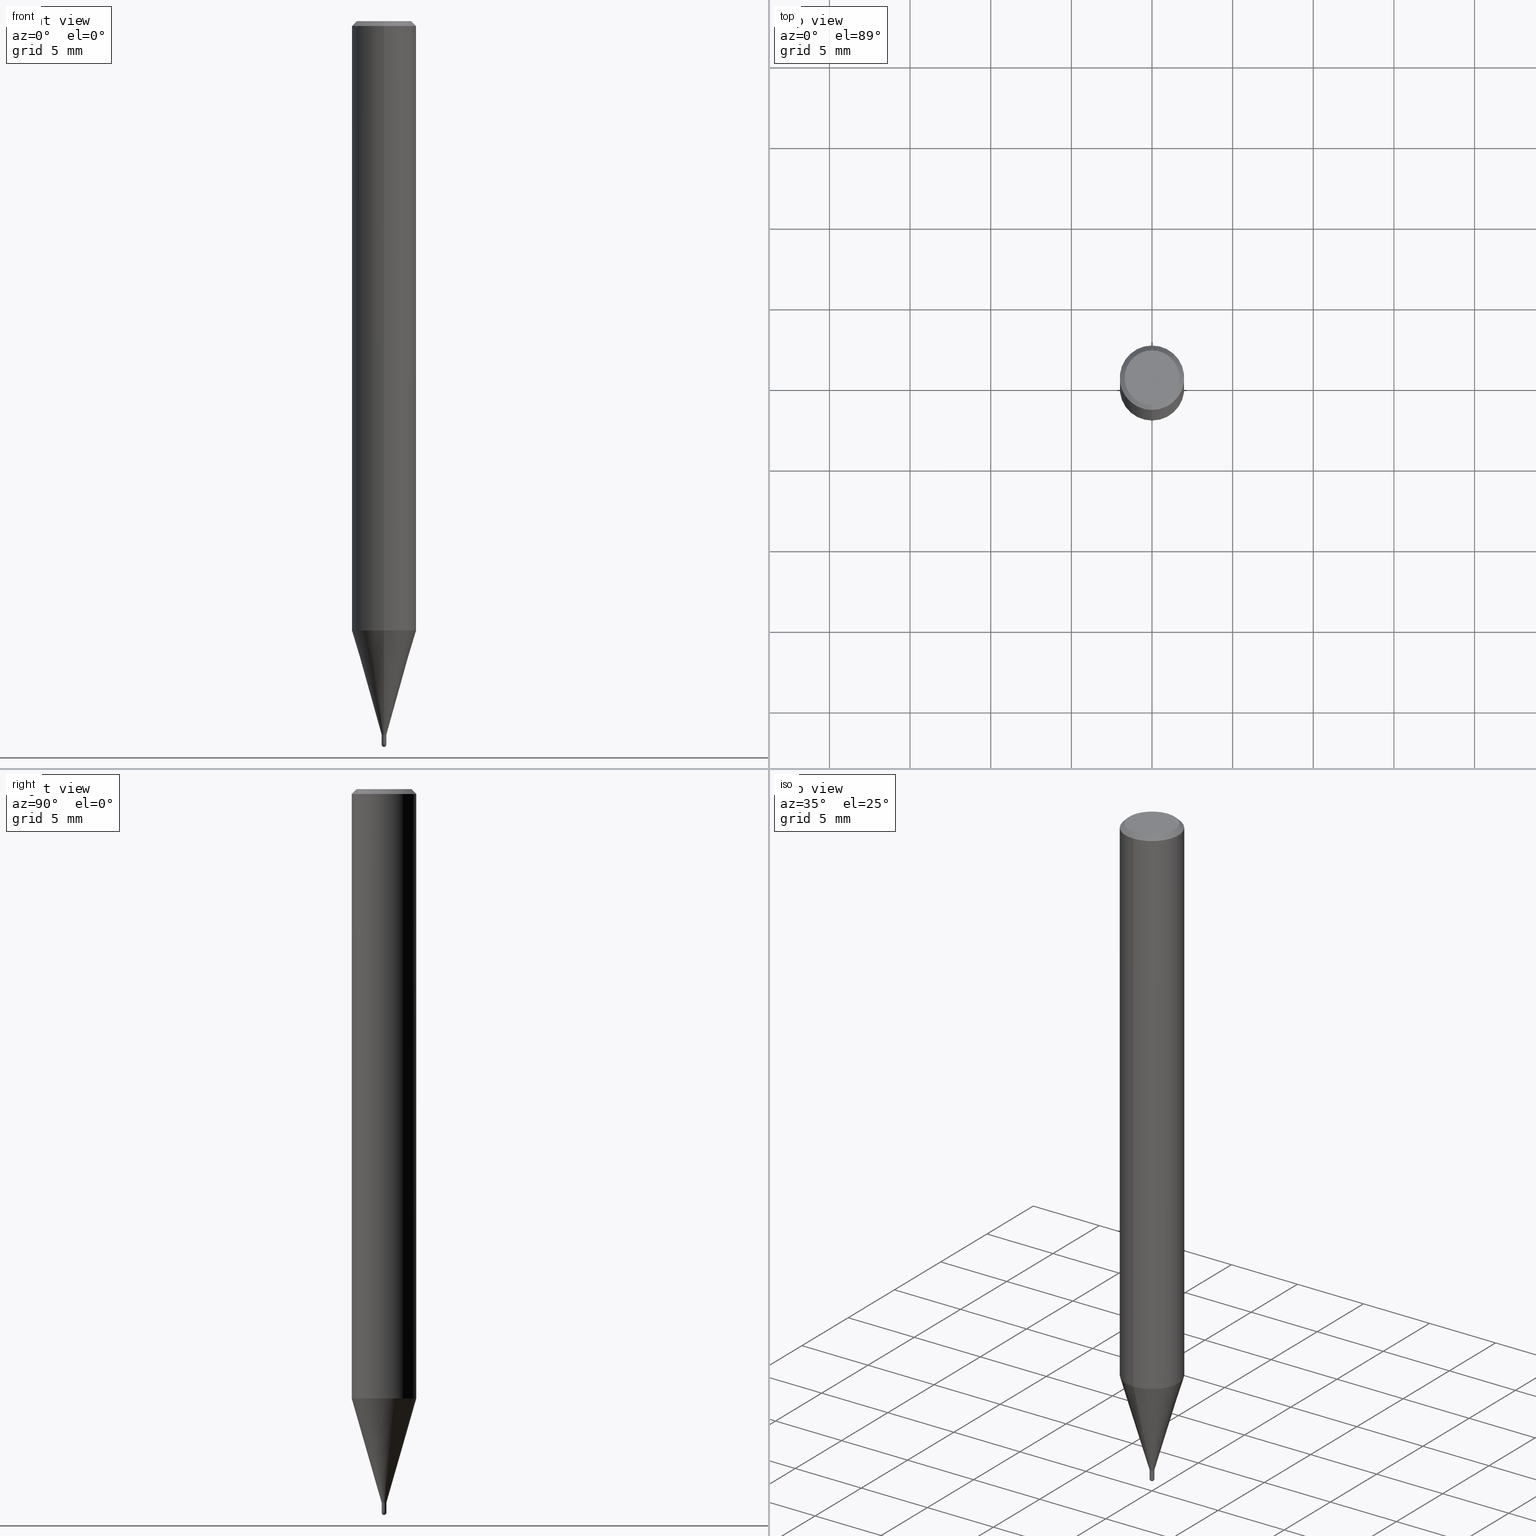
[diagram: canonical four-view strip — front | top / right | iso, engineering-drawing reading convention]
A machine part, canonical four-view strip (front | top / right | iso — engineering-drawing reading convention). The complete STEP part file that produces these views, byte-faithful:
ISO-10303-21;
HEADER;
FILE_DESCRIPTION(('no description'),'unknown implementation level');
FILE_NAME('HSLB2003-0075-Huellk.stp','  ',('CIMSOURCE GmbH'),('CADClick - KiM GmbH - www.kimweb.de'),'unknown preprocess','ACIS','unknown authorization');
FILE_SCHEMA(('automotive_design'));
ENDSEC;
DATA;
#1=MECHANICAL_DESIGN_GEOMETRIC_PRESENTATION_REPRESENTATION(' ',(#14,#15,#16,#17,#18,#19,#20,#21,#22,#23,#24,#25,#26,#27,#28,#29,#30,#31,#32,#33,#34,#35,#36,#37,#38,#39,#40,#41,#42,#43,#44,#45,#46,#47,#48,#49,#50,#51,#52,#53,#54,#55,#56,#57,#58,#59,#60,#61,#62,#63,#64,#65,#66,#67,#68,#69,#70,#71,#72,#73,#74),#10);
#2=PRODUCT_DEFINITION_CONTEXT('',#75,'design');
#3=APPLICATION_PROTOCOL_DEFINITION('INTERNATIONAL STANDARD','automotive_design',1994,#75);
#4=PRODUCT_CATEGORY_RELATIONSHIP('NONE','NONE',#76,#77);
#5=SHAPE_DEFINITION_REPRESENTATION(#78,#79);
#6=PRODUCT_DEFINITION_CONTEXT('',#80,'design');
#7=APPLICATION_PROTOCOL_DEFINITION('INTERNATIONAL STANDARD','automotive_design',1994,#80);
#8=PRODUCT_CATEGORY_RELATIONSHIP('NONE','NONE',#81,#82);
#9=SHAPE_DEFINITION_REPRESENTATION(#83,#84);
#10= (GEOMETRIC_REPRESENTATION_CONTEXT(3)GLOBAL_UNCERTAINTY_ASSIGNED_CONTEXT((#87))GLOBAL_UNIT_ASSIGNED_CONTEXT((#89,#90,#91))REPRESENTATION_CONTEXT('NONE','WORKSPACE'));
#14=STYLED_ITEM('',(#93),#94);
#15=STYLED_ITEM('',(#95),#96);
#16=STYLED_ITEM('',(#97),#98);
#17=STYLED_ITEM('',(#99),#100);
#18=STYLED_ITEM('',(#101),#102);
#19=STYLED_ITEM('',(#103),#104);
#20=STYLED_ITEM('',(#105),#106);
#21=STYLED_ITEM('',(#107),#108);
#22=STYLED_ITEM('',(#109),#110);
#23=STYLED_ITEM('',(#111),#112);
#24=STYLED_ITEM('',(#113),#114);
#25=STYLED_ITEM('',(#115),#116);
#26=STYLED_ITEM('',(#117),#118);
#27=STYLED_ITEM('',(#119),#120);
#28=STYLED_ITEM('',(#121),#122);
#29=STYLED_ITEM('',(#123),#124);
#30=STYLED_ITEM('',(#125),#126);
#31=STYLED_ITEM('',(#127),#128);
#32=STYLED_ITEM('',(#129),#130);
#33=STYLED_ITEM('',(#131),#132);
#34=STYLED_ITEM('',(#133),#134);
#35=STYLED_ITEM('',(#135),#136);
#36=STYLED_ITEM('',(#137),#138);
#37=STYLED_ITEM('',(#139),#140);
#38=STYLED_ITEM('',(#141),#142);
#39=STYLED_ITEM('',(#143),#144);
#40=STYLED_ITEM('',(#145),#146);
#41=STYLED_ITEM('',(#147),#148);
#42=STYLED_ITEM('',(#149),#150);
#43=STYLED_ITEM('',(#151),#152);
#44=STYLED_ITEM('',(#153),#154);
#45=STYLED_ITEM('',(#155),#156);
#46=STYLED_ITEM('',(#157),#158);
#47=STYLED_ITEM('',(#159),#160);
#48=STYLED_ITEM('',(#161),#162);
#49=STYLED_ITEM('',(#163),#164);
#50=STYLED_ITEM('',(#165),#166);
#51=STYLED_ITEM('',(#167),#168);
#52=STYLED_ITEM('',(#169),#170);
#53=STYLED_ITEM('',(#171),#172);
#54=STYLED_ITEM('',(#173),#174);
#55=STYLED_ITEM('',(#175),#176);
#56=STYLED_ITEM('',(#177),#178);
#57=STYLED_ITEM('',(#179),#180);
#58=STYLED_ITEM('',(#181),#182);
#59=STYLED_ITEM('',(#183),#184);
#60=STYLED_ITEM('',(#185),#186);
#61=STYLED_ITEM('',(#187),#188);
#62=STYLED_ITEM('',(#189),#190);
#63=STYLED_ITEM('',(#191),#192);
#64=STYLED_ITEM('',(#193),#194);
#65=STYLED_ITEM('',(#195),#196);
#66=STYLED_ITEM('',(#197),#198);
#67=STYLED_ITEM('',(#199),#200);
#68=STYLED_ITEM('',(#201),#202);
#69=STYLED_ITEM('',(#203),#204);
#70=STYLED_ITEM('',(#205),#206);
#71=STYLED_ITEM('',(#207),#208);
#72=STYLED_ITEM('',(#209),#210);
#73=STYLED_ITEM('',(#211),#212);
#74=STYLED_ITEM('',(#213),#214);
#75=APPLICATION_CONTEXT(' ');
#76=PRODUCT_CATEGORY('part','NONE');
#77=PRODUCT_RELATED_PRODUCT_CATEGORY('detail',' ',(#215));
#78=PRODUCT_DEFINITION_SHAPE('NONE','NONE',#216);
#79=ADVANCED_BREP_SHAPE_REPRESENTATION('1',(#204,#217),#10);
#80=APPLICATION_CONTEXT(' ');
#81=PRODUCT_CATEGORY('part','NONE');
#82=PRODUCT_RELATED_PRODUCT_CATEGORY('detail',' ',(#218));
#83=PRODUCT_DEFINITION_SHAPE('NONE','NONE',#219);
#84=ADVANCED_BREP_SHAPE_REPRESENTATION('2',(#96,#220),#10);
#87=UNCERTAINTY_MEASURE_WITH_UNIT(LENGTH_MEASURE(1.0E-006),#89,'','');
#89= (CONVERSION_BASED_UNIT('MILLIMETRE',#223)LENGTH_UNIT()NAMED_UNIT(#226));
#90= (NAMED_UNIT(#228)PLANE_ANGLE_UNIT()SI_UNIT($,.RADIAN.));
#91= (NAMED_UNIT(#228)SOLID_ANGLE_UNIT()SI_UNIT($,.STERADIAN.));
#93=PRESENTATION_STYLE_ASSIGNMENT((#234));
#94=EDGE_CURVE('',#152,#102,#235,.T.);
#95=PRESENTATION_STYLE_ASSIGNMENT((#236));
#96=MANIFOLD_SOLID_BREP('2',#237);
#97=PRESENTATION_STYLE_ASSIGNMENT((#238));
#98=EDGE_CURVE('',#168,#120,#239,.T.);
#99=PRESENTATION_STYLE_ASSIGNMENT((#240));
#100=EDGE_CURVE('',#102,#188,#241,.T.);
#101=PRESENTATION_STYLE_ASSIGNMENT((#242));
#102=VERTEX_POINT('',#243);
#103=PRESENTATION_STYLE_ASSIGNMENT((#244));
#104=VERTEX_POINT('',#245);
#105=PRESENTATION_STYLE_ASSIGNMENT((#246));
#106=ADVANCED_FACE('',(#247),#248,.T.);
#107=PRESENTATION_STYLE_ASSIGNMENT((#249));
#108=ADVANCED_FACE('',(#250),#251,.T.);
#109=PRESENTATION_STYLE_ASSIGNMENT((#252));
#110=EDGE_CURVE('',#104,#212,#253,.T.);
#111=PRESENTATION_STYLE_ASSIGNMENT((#254));
#112=EDGE_CURVE('',#120,#214,#255,.T.);
#113=PRESENTATION_STYLE_ASSIGNMENT((#256));
#114=VERTEX_POINT('',#257);
#115=PRESENTATION_STYLE_ASSIGNMENT((#258));
#116=EDGE_CURVE('',#132,#212,#259,.T.);
#117=PRESENTATION_STYLE_ASSIGNMENT((#260));
#118=VERTEX_POINT('',#261);
#119=PRESENTATION_STYLE_ASSIGNMENT((#262));
#120=VERTEX_POINT('',#263);
#121=PRESENTATION_STYLE_ASSIGNMENT((#264));
#122=EDGE_CURVE('',#104,#114,#265,.T.);
#123=PRESENTATION_STYLE_ASSIGNMENT((#266));
#124=EDGE_CURVE('',#214,#156,#267,.T.);
#125=PRESENTATION_STYLE_ASSIGNMENT((#268));
#126=ADVANCED_FACE('',(#269),#270,.T.);
#127=PRESENTATION_STYLE_ASSIGNMENT((#271));
#128=EDGE_CURVE('',#156,#176,#272,.T.);
#129=PRESENTATION_STYLE_ASSIGNMENT((#273));
#130=ADVANCED_FACE('',(#274),#275,.T.);
#131=PRESENTATION_STYLE_ASSIGNMENT((#276));
#132=VERTEX_POINT('',#277);
#133=PRESENTATION_STYLE_ASSIGNMENT((#278));
#134=VERTEX_POINT('',#279);
#135=PRESENTATION_STYLE_ASSIGNMENT((#280));
#136=ADVANCED_FACE('',(#281),#282,.T.);
#137=PRESENTATION_STYLE_ASSIGNMENT((#283));
#138=EDGE_CURVE('',#176,#180,#284,.T.);
#139=PRESENTATION_STYLE_ASSIGNMENT((#285));
#140=ADVANCED_FACE('',(#286),#287,.T.);
#141=PRESENTATION_STYLE_ASSIGNMENT((#288));
#142=EDGE_CURVE('',#114,#132,#289,.T.);
#143=PRESENTATION_STYLE_ASSIGNMENT((#290));
#144=EDGE_CURVE('',#120,#176,#291,.T.);
#145=PRESENTATION_STYLE_ASSIGNMENT((#292));
#146=ADVANCED_FACE('',(#293),#294,.T.);
#147=PRESENTATION_STYLE_ASSIGNMENT((#295));
#148=EDGE_CURVE('',#152,#118,#296,.T.);
#149=PRESENTATION_STYLE_ASSIGNMENT((#297));
#150=ADVANCED_FACE('',(#298),#299,.T.);
#151=PRESENTATION_STYLE_ASSIGNMENT((#300));
#152=VERTEX_POINT('',#301);
#153=PRESENTATION_STYLE_ASSIGNMENT((#302));
#154=EDGE_CURVE('',#188,#118,#303,.T.);
#155=PRESENTATION_STYLE_ASSIGNMENT((#304));
#156=VERTEX_POINT('',#305);
#157=PRESENTATION_STYLE_ASSIGNMENT((#306));
#158=EDGE_CURVE('',#114,#164,#307,.T.);
#159=PRESENTATION_STYLE_ASSIGNMENT((#308));
#160=EDGE_CURVE('',#212,#104,#309,.T.);
#161=PRESENTATION_STYLE_ASSIGNMENT((#310));
#162=EDGE_CURVE('',#152,#118,#311,.T.);
#163=PRESENTATION_STYLE_ASSIGNMENT((#312));
#164=VERTEX_POINT('',#313);
#165=PRESENTATION_STYLE_ASSIGNMENT((#314));
#166=ADVANCED_FACE('',(#315),#316,.T.);
#167=PRESENTATION_STYLE_ASSIGNMENT((#317));
#168=VERTEX_POINT('',#318);
#169=PRESENTATION_STYLE_ASSIGNMENT((#319));
#170=EDGE_CURVE('',#134,#132,#320,.T.);
#171=PRESENTATION_STYLE_ASSIGNMENT((#321));
#172=EDGE_CURVE('',#180,#168,#322,.T.);
#173=PRESENTATION_STYLE_ASSIGNMENT((#323));
#174=EDGE_CURVE('',#164,#134,#324,.T.);
#175=PRESENTATION_STYLE_ASSIGNMENT((#325));
#176=VERTEX_POINT('',#326);
#177=PRESENTATION_STYLE_ASSIGNMENT((#327));
#178=EDGE_CURVE('',#176,#120,#328,.T.);
#179=PRESENTATION_STYLE_ASSIGNMENT((#329));
#180=VERTEX_POINT('',#330);
#181=PRESENTATION_STYLE_ASSIGNMENT((#331));
#182=EDGE_CURVE('',#168,#180,#332,.T.);
#183=PRESENTATION_STYLE_ASSIGNMENT((#333));
#184=ADVANCED_FACE('',(#334),#335,.T.);
#185=PRESENTATION_STYLE_ASSIGNMENT((#336));
#186=ADVANCED_FACE('',(#337),#338,.T.);
#187=PRESENTATION_STYLE_ASSIGNMENT((#339));
#188=VERTEX_POINT('',#340);
#189=PRESENTATION_STYLE_ASSIGNMENT((#341));
#190=ADVANCED_FACE('',(#342,#343),#344,.T.);
#191=PRESENTATION_STYLE_ASSIGNMENT((#345));
#192=EDGE_CURVE('',#132,#114,#346,.T.);
#193=PRESENTATION_STYLE_ASSIGNMENT((#347));
#194=EDGE_CURVE('',#188,#102,#348,.T.);
#195=PRESENTATION_STYLE_ASSIGNMENT((#349));
#196=ADVANCED_FACE('',(#350),#351,.T.);
#197=PRESENTATION_STYLE_ASSIGNMENT((#352));
#198=EDGE_CURVE('',#156,#214,#353,.T.);
#199=PRESENTATION_STYLE_ASSIGNMENT((#354));
#200=EDGE_CURVE('',#134,#164,#355,.T.);
#201=PRESENTATION_STYLE_ASSIGNMENT((#356));
#202=ADVANCED_FACE('',(#357),#358,.T.);
#203=PRESENTATION_STYLE_ASSIGNMENT((#359));
#204=MANIFOLD_SOLID_BREP('1',#360);
#205=PRESENTATION_STYLE_ASSIGNMENT((#361));
#206=ADVANCED_FACE('',(#362),#363,.T.);
#207=PRESENTATION_STYLE_ASSIGNMENT((#364));
#208=EDGE_CURVE('',#118,#152,#365,.T.);
#209=PRESENTATION_STYLE_ASSIGNMENT((#366));
#210=ADVANCED_FACE('',(#367),#368,.T.);
#211=PRESENTATION_STYLE_ASSIGNMENT((#369));
#212=VERTEX_POINT('',#370);
#213=PRESENTATION_STYLE_ASSIGNMENT((#371));
#214=VERTEX_POINT('',#372);
#215=PRODUCT('1','1','PART-1-DESC',(#373));
#216=PRODUCT_DEFINITION('NONE','NONE',#374,#2);
#217=AXIS2_PLACEMENT_3D('',#375,#376,#377);
#218=PRODUCT('2','2','PART-2-DESC',(#378));
#219=PRODUCT_DEFINITION('NONE','NONE',#379,#6);
#220=AXIS2_PLACEMENT_3D('',#380,#381,#382);
#223=LENGTH_MEASURE_WITH_UNIT(LENGTH_MEASURE(1.0),#383);
#226=DIMENSIONAL_EXPONENTS(1.0,0.0,0.0,0.0,0.0,0.0,0.0);
#228=DIMENSIONAL_EXPONENTS(0.0,0.0,0.0,0.0,0.0,0.0,0.0);
#234=CURVE_STYLE('',#384,POSITIVE_LENGTH_MEASURE(1.0E-006),#385);
#235=LINE('',#386,#387);
#236=SURFACE_STYLE_USAGE(.BOTH.,#388);
#237=CLOSED_SHELL('',(#206,#130,#136,#140,#184));
#238=CURVE_STYLE('',#389,POSITIVE_LENGTH_MEASURE(1.0E-006),#390);
#239=LINE('',#391,#392);
#240=CURVE_STYLE('',#393,POSITIVE_LENGTH_MEASURE(1.0E-006),#394);
#241=CIRCLE('',#395,0.1499);
#242=POINT_STYLE(' ',#396,POSITIVE_LENGTH_MEASURE(1.0E-006),#397);
#243=CARTESIAN_POINT('',(1.83568492437974E-017,-0.1499,-44.76));
#244=POINT_STYLE(' ',#398,POSITIVE_LENGTH_MEASURE(1.0E-006),#399);
#245=CARTESIAN_POINT('',(0.0,1.99995,-37.781));
#246=SURFACE_STYLE_USAGE(.BOTH.,#400);
#247=FACE_OUTER_BOUND('',#401,.T.);
#248=CONICAL_SURFACE('',#402,1.07245,0.279258979430111);
#249=SURFACE_STYLE_USAGE(.BOTH.,#403);
#250=FACE_OUTER_BOUND('',#404,.T.);
#251=CYLINDRICAL_SURFACE('',#405,2.0);
#252=CURVE_STYLE('',#406,POSITIVE_LENGTH_MEASURE(1.0E-006),#407);
#253=CIRCLE('',#408,1.99995);
#254=CURVE_STYLE('',#409,POSITIVE_LENGTH_MEASURE(1.0E-006),#410);
#255=LINE('',#411,#412);
#256=POINT_STYLE(' ',#413,POSITIVE_LENGTH_MEASURE(1.0E-006),#414);
#257=CARTESIAN_POINT('',(0.0,0.14495,-44.25));
#258=CURVE_STYLE('',#415,POSITIVE_LENGTH_MEASURE(1.0E-006),#416);
#259=LINE('',#417,#418);
#260=POINT_STYLE(' ',#419,POSITIVE_LENGTH_MEASURE(1.0E-006),#420);
#261=CARTESIAN_POINT('',(0.0,0.15,-44.85));
#262=POINT_STYLE(' ',#421,POSITIVE_LENGTH_MEASURE(1.0E-006),#422);
#263=CARTESIAN_POINT('',(2.44921270764475E-016,-2.0,-0.299999999999997));
#264=CURVE_STYLE('',#423,POSITIVE_LENGTH_MEASURE(1.0E-006),#424);
#265=LINE('',#425,#426);
#266=CURVE_STYLE('',#427,POSITIVE_LENGTH_MEASURE(1.0E-006),#428);
#267=CIRCLE('',#429,1.7);
#268=SURFACE_STYLE_USAGE(.BOTH.,#430);
#269=FACE_OUTER_BOUND('',#431,.T.);
#270=PLANE('',#432);
#271=CURVE_STYLE('',#433,POSITIVE_LENGTH_MEASURE(1.0E-006),#434);
#272=LINE('',#435,#436);
#273=SURFACE_STYLE_USAGE(.BOTH.,#437);
#274=FACE_OUTER_BOUND('',#438,.T.);
#275=CONICAL_SURFACE('',#439,0.14995,0.00111111065386396);
#276=POINT_STYLE(' ',#440,POSITIVE_LENGTH_MEASURE(1.0E-006),#441);
#277=CARTESIAN_POINT('',(1.77506690986553E-017,-0.14495,-44.25));
#278=POINT_STYLE(' ',#442,POSITIVE_LENGTH_MEASURE(1.0E-006),#443);
#279=CARTESIAN_POINT('',(1.77506690986554E-017,-0.14495,-44.76));
#280=SURFACE_STYLE_USAGE(.BOTH.,#444);
#281=FACE_OUTER_BOUND('',#445,.T.);
#282=PLANE('',#446);
#283=CURVE_STYLE('',#447,POSITIVE_LENGTH_MEASURE(1.0E-006),#448);
#284=LINE('',#449,#450);
#285=SURFACE_STYLE_USAGE(.BOTH.,#451);
#286=FACE_OUTER_BOUND('',#452,.T.);
#287=CONICAL_SURFACE('',#453,0.14995,0.00111111065386396);
#288=CURVE_STYLE('',#454,POSITIVE_LENGTH_MEASURE(1.0E-006),#455);
#289=CIRCLE('',#456,0.14495);
#290=CURVE_STYLE('',#457,POSITIVE_LENGTH_MEASURE(1.0E-006),#458);
#291=CIRCLE('',#459,2.0);
#292=SURFACE_STYLE_USAGE(.BOTH.,#460);
#293=FACE_OUTER_BOUND('',#461,.T.);
#294=PLANE('',#462);
#295=CURVE_STYLE('',#463,POSITIVE_LENGTH_MEASURE(1.0E-006),#464);
#296=CIRCLE('',#465,0.15);
#297=SURFACE_STYLE_USAGE(.BOTH.,#466);
#298=FACE_OUTER_BOUND('',#467,.T.);
#299=CYLINDRICAL_SURFACE('',#468,0.14495);
#300=POINT_STYLE(' ',#469,POSITIVE_LENGTH_MEASURE(1.0E-006),#470);
#301=CARTESIAN_POINT('',(1.83690953073356E-017,-0.15,-44.85));
#302=CURVE_STYLE('',#471,POSITIVE_LENGTH_MEASURE(1.0E-006),#472);
#303=LINE('',#473,#474);
#304=POINT_STYLE(' ',#475,POSITIVE_LENGTH_MEASURE(1.0E-006),#476);
#305=CARTESIAN_POINT('',(0.0,1.7,0.0));
#306=CURVE_STYLE('',#477,POSITIVE_LENGTH_MEASURE(1.0E-006),#478);
#307=LINE('',#479,#480);
#308=CURVE_STYLE('',#481,POSITIVE_LENGTH_MEASURE(1.0E-006),#482);
#309=CIRCLE('',#483,1.99995);
#310=CURVE_STYLE('',#484,POSITIVE_LENGTH_MEASURE(1.0E-006),#485);
#311=CIRCLE('',#486,0.15);
#312=POINT_STYLE(' ',#487,POSITIVE_LENGTH_MEASURE(1.0E-006),#488);
#313=CARTESIAN_POINT('',(0.0,0.14495,-44.76));
#314=SURFACE_STYLE_USAGE(.BOTH.,#489);
#315=FACE_OUTER_BOUND('',#490,.T.);
#316=CYLINDRICAL_SURFACE('',#491,0.14495);
#317=POINT_STYLE(' ',#492,POSITIVE_LENGTH_MEASURE(1.0E-006),#493);
#318=CARTESIAN_POINT('',(2.44921270764475E-016,-2.0,-37.781));
#319=CURVE_STYLE('',#494,POSITIVE_LENGTH_MEASURE(1.0E-006),#495);
#320=LINE('',#496,#497);
#321=CURVE_STYLE('',#498,POSITIVE_LENGTH_MEASURE(1.0E-006),#499);
#322=CIRCLE('',#500,2.0);
#323=CURVE_STYLE('',#501,POSITIVE_LENGTH_MEASURE(1.0E-006),#502);
#324=CIRCLE('',#503,0.14495);
#325=POINT_STYLE(' ',#504,POSITIVE_LENGTH_MEASURE(1.0E-006),#505);
#326=CARTESIAN_POINT('',(0.0,2.0,-0.299999999999997));
#327=CURVE_STYLE('',#506,POSITIVE_LENGTH_MEASURE(1.0E-006),#507);
#328=CIRCLE('',#508,2.0);
#329=POINT_STYLE(' ',#509,POSITIVE_LENGTH_MEASURE(1.0E-006),#510);
#330=CARTESIAN_POINT('',(0.0,2.0,-37.781));
#331=CURVE_STYLE('',#511,POSITIVE_LENGTH_MEASURE(1.0E-006),#512);
#332=CIRCLE('',#513,2.0);
#333=SURFACE_STYLE_USAGE(.BOTH.,#514);
#334=FACE_OUTER_BOUND('',#515,.T.);
#335=SPHERICAL_SURFACE('',#516,0.15);
#336=SURFACE_STYLE_USAGE(.BOTH.,#517);
#337=FACE_OUTER_BOUND('',#518,.T.);
#338=CONICAL_SURFACE('',#519,1.85,0.785398163397453);
#339=POINT_STYLE(' ',#520,POSITIVE_LENGTH_MEASURE(1.0E-006),#521);
#340=CARTESIAN_POINT('',(0.0,0.1499,-44.76));
#341=SURFACE_STYLE_USAGE(.BOTH.,#522);
#342=FACE_OUTER_BOUND('',#523,.T.);
#343=FACE_BOUND('',#524,.T.);
#344=PLANE('',#525);
#345=CURVE_STYLE('',#526,POSITIVE_LENGTH_MEASURE(1.0E-006),#527);
#346=CIRCLE('',#528,0.14495);
#347=CURVE_STYLE('',#529,POSITIVE_LENGTH_MEASURE(1.0E-006),#530);
#348=CIRCLE('',#531,0.1499);
#349=SURFACE_STYLE_USAGE(.BOTH.,#532);
#350=FACE_OUTER_BOUND('',#533,.T.);
#351=CYLINDRICAL_SURFACE('',#534,2.0);
#352=CURVE_STYLE('',#535,POSITIVE_LENGTH_MEASURE(1.0E-006),#536);
#353=CIRCLE('',#537,1.7);
#354=CURVE_STYLE('',#538,POSITIVE_LENGTH_MEASURE(1.0E-006),#539);
#355=CIRCLE('',#540,0.14495);
#356=SURFACE_STYLE_USAGE(.BOTH.,#541);
#357=FACE_OUTER_BOUND('',#542,.T.);
#358=CONICAL_SURFACE('',#543,1.07245,0.279258979430111);
#359=SURFACE_STYLE_USAGE(.BOTH.,#544);
#360=CLOSED_SHELL('',(#166,#202,#108,#210,#190,#146,#186,#196,#106,#150,#126));
#361=SURFACE_STYLE_USAGE(.BOTH.,#545);
#362=FACE_OUTER_BOUND('',#546,.T.);
#363=SPHERICAL_SURFACE('',#547,0.15);
#364=CURVE_STYLE('',#548,POSITIVE_LENGTH_MEASURE(1.0E-006),#549);
#365=CIRCLE('',#550,0.15);
#366=SURFACE_STYLE_USAGE(.BOTH.,#551);
#367=FACE_OUTER_BOUND('',#552,.T.);
#368=CONICAL_SURFACE('',#553,1.85,0.785398163397453);
#369=POINT_STYLE(' ',#554,POSITIVE_LENGTH_MEASURE(1.0E-006),#555);
#370=CARTESIAN_POINT('',(2.44915147732706E-016,-1.99995,-37.781));
#371=POINT_STYLE(' ',#556,POSITIVE_LENGTH_MEASURE(1.0E-006),#557);
#372=CARTESIAN_POINT('',(2.08183080149804E-016,-1.7,0.0));
#373=PRODUCT_CONTEXT('',#75,'mechanical');
#374=PRODUCT_DEFINITION_FORMATION_WITH_SPECIFIED_SOURCE(' ','NONE',#215,.NOT_KNOWN.);
#375=CARTESIAN_POINT('',(0.0,0.0,0.0));
#376=DIRECTION('',(0.0,0.0,1.0));
#377=DIRECTION('',(1.0,0.0,0.0));
#378=PRODUCT_CONTEXT('',#80,'mechanical');
#379=PRODUCT_DEFINITION_FORMATION_WITH_SPECIFIED_SOURCE(' ','NONE',#218,.NOT_KNOWN.);
#380=CARTESIAN_POINT('',(0.0,0.0,0.0));
#381=DIRECTION('',(0.0,0.0,1.0));
#382=DIRECTION('',(1.0,0.0,0.0));
#383= (NAMED_UNIT(#226)LENGTH_UNIT()SI_UNIT(.MILLI.,.METRE.));
#384=DRAUGHTING_PRE_DEFINED_CURVE_FONT('continuous');
#385=COLOUR_RGB('',0.800000011920929,0.800000011920929,0.800000011920929);
#386=CARTESIAN_POINT('',(1.83629722755665E-017,-0.14995,-44.805));
#387=VECTOR('',#559,1.0);
#388=SURFACE_SIDE_STYLE('',(#560));
#389=DRAUGHTING_PRE_DEFINED_CURVE_FONT('continuous');
#390=COLOUR_RGB('',0.498039215803146,0.498039215803146,0.498039215803146);
#391=CARTESIAN_POINT('',(2.44921270764475E-016,-2.0,-19.0405));
#392=VECTOR('',#561,1.0);
#393=DRAUGHTING_PRE_DEFINED_CURVE_FONT('continuous');
#394=COLOUR_RGB('',0.800000011920929,0.800000011920929,0.800000011920929);
#395=AXIS2_PLACEMENT_3D('',#562,#563,#564);
#396=PRE_DEFINED_MARKER('');
#397=COLOUR_RGB('',0.800000011920929,0.800000011920929,0.800000011920929);
#398=PRE_DEFINED_MARKER('');
#399=COLOUR_RGB('',0.498039215803146,0.498039215803146,0.498039215803146);
#400=SURFACE_SIDE_STYLE('',(#565));
#401=EDGE_LOOP('',(#566,#567,#568,#569));
#402=AXIS2_PLACEMENT_3D('',#570,#571,#572);
#403=SURFACE_SIDE_STYLE('',(#573));
#404=EDGE_LOOP('',(#574,#575,#576,#577));
#405=AXIS2_PLACEMENT_3D('',#578,#579,#580);
#406=DRAUGHTING_PRE_DEFINED_CURVE_FONT('continuous');
#407=COLOUR_RGB('',0.498039215803146,0.498039215803146,0.498039215803146);
#408=AXIS2_PLACEMENT_3D('',#581,#582,#583);
#409=DRAUGHTING_PRE_DEFINED_CURVE_FONT('continuous');
#410=COLOUR_RGB('',0.498039215803146,0.498039215803146,0.498039215803146);
#411=CARTESIAN_POINT('',(2.2655217545714E-016,-1.85,-0.149999999999999));
#412=VECTOR('',#584,1.0);
#413=PRE_DEFINED_MARKER('');
#414=COLOUR_RGB('',0.498039215803146,0.498039215803146,0.498039215803146);
#415=DRAUGHTING_PRE_DEFINED_CURVE_FONT('continuous');
#416=COLOUR_RGB('',0.498039215803146,0.498039215803146,0.498039215803146);
#417=CARTESIAN_POINT('',(1.31332908415681E-016,-1.07245,-41.0155));
#418=VECTOR('',#585,1.0);
#419=PRE_DEFINED_MARKER('');
#420=COLOUR_RGB('',0.800000011920929,0.800000011920929,0.800000011920929);
#421=PRE_DEFINED_MARKER('');
#422=COLOUR_RGB('',0.498039215803146,0.498039215803146,0.498039215803146);
#423=DRAUGHTING_PRE_DEFINED_CURVE_FONT('continuous');
#424=COLOUR_RGB('',0.498039215803146,0.498039215803146,0.498039215803146);
#425=CARTESIAN_POINT('',(-1.31332908415681E-016,1.07245,-41.0155));
#426=VECTOR('',#586,1.0);
#427=DRAUGHTING_PRE_DEFINED_CURVE_FONT('continuous');
#428=COLOUR_RGB('',0.498039215803146,0.498039215803146,0.498039215803146);
#429=AXIS2_PLACEMENT_3D('',#587,#588,#589);
#430=SURFACE_SIDE_STYLE('',(#590));
#431=EDGE_LOOP('',(#591,#592));
#432=AXIS2_PLACEMENT_3D('',#593,#594,#595);
#433=DRAUGHTING_PRE_DEFINED_CURVE_FONT('continuous');
#434=COLOUR_RGB('',0.498039215803146,0.498039215803146,0.498039215803146);
#435=CARTESIAN_POINT('',(-2.2655217545714E-016,1.85,-0.149999999999999));
#436=VECTOR('',#596,1.0);
#437=SURFACE_SIDE_STYLE('',(#597));
#438=EDGE_LOOP('',(#598,#599,#600,#601));
#439=AXIS2_PLACEMENT_3D('',#602,#603,#604);
#440=PRE_DEFINED_MARKER('');
#441=COLOUR_RGB('',0.498039215803146,0.498039215803146,0.498039215803146);
#442=PRE_DEFINED_MARKER('');
#443=COLOUR_RGB('',0.498039215803146,0.498039215803146,0.498039215803146);
#444=SURFACE_SIDE_STYLE('',(#605));
#445=EDGE_LOOP('',(#606,#607));
#446=AXIS2_PLACEMENT_3D('',#608,#609,#610);
#447=DRAUGHTING_PRE_DEFINED_CURVE_FONT('continuous');
#448=COLOUR_RGB('',0.498039215803146,0.498039215803146,0.498039215803146);
#449=CARTESIAN_POINT('',(-2.44921270764475E-016,2.0,-19.0405));
#450=VECTOR('',#611,1.0);
#451=SURFACE_SIDE_STYLE('',(#612));
#452=EDGE_LOOP('',(#613,#614,#615,#616));
#453=AXIS2_PLACEMENT_3D('',#617,#618,#619);
#454=DRAUGHTING_PRE_DEFINED_CURVE_FONT('continuous');
#455=COLOUR_RGB('',0.498039215803146,0.498039215803146,0.498039215803146);
#456=AXIS2_PLACEMENT_3D('',#620,#621,#622);
#457=DRAUGHTING_PRE_DEFINED_CURVE_FONT('continuous');
#458=COLOUR_RGB('',0.498039215803146,0.498039215803146,0.498039215803146);
#459=AXIS2_PLACEMENT_3D('',#623,#624,#625);
#460=SURFACE_SIDE_STYLE('',(#626));
#461=EDGE_LOOP('',(#627,#628));
#462=AXIS2_PLACEMENT_3D('',#629,#630,#631);
#463=DRAUGHTING_PRE_DEFINED_CURVE_FONT('continuous');
#464=COLOUR_RGB('',0.800000011920929,0.800000011920929,0.800000011920929);
#465=AXIS2_PLACEMENT_3D('',#632,#633,#634);
#466=SURFACE_SIDE_STYLE('',(#635));
#467=EDGE_LOOP('',(#636,#637,#638,#639));
#468=AXIS2_PLACEMENT_3D('',#640,#641,#642);
#469=PRE_DEFINED_MARKER('');
#470=COLOUR_RGB('',0.800000011920929,0.800000011920929,0.800000011920929);
#471=DRAUGHTING_PRE_DEFINED_CURVE_FONT('continuous');
#472=COLOUR_RGB('',0.800000011920929,0.800000011920929,0.800000011920929);
#473=CARTESIAN_POINT('',(-1.83629722755665E-017,0.14995,-44.805));
#474=VECTOR('',#643,1.0);
#475=PRE_DEFINED_MARKER('');
#476=COLOUR_RGB('',0.498039215803146,0.498039215803146,0.498039215803146);
#477=DRAUGHTING_PRE_DEFINED_CURVE_FONT('continuous');
#478=COLOUR_RGB('',0.498039215803146,0.498039215803146,0.498039215803146);
#479=CARTESIAN_POINT('',(-1.77506690986554E-017,0.14495,-44.505));
#480=VECTOR('',#644,1.0);
#481=DRAUGHTING_PRE_DEFINED_CURVE_FONT('continuous');
#482=COLOUR_RGB('',0.498039215803146,0.498039215803146,0.498039215803146);
#483=AXIS2_PLACEMENT_3D('',#645,#646,#647);
#484=DRAUGHTING_PRE_DEFINED_CURVE_FONT('continuous');
#485=COLOUR_RGB('',0.800000011920929,0.800000011920929,0.800000011920929);
#486=AXIS2_PLACEMENT_3D('',#648,#649,#650);
#487=PRE_DEFINED_MARKER('');
#488=COLOUR_RGB('',0.498039215803146,0.498039215803146,0.498039215803146);
#489=SURFACE_SIDE_STYLE('',(#651));
#490=EDGE_LOOP('',(#652,#653,#654,#655));
#491=AXIS2_PLACEMENT_3D('',#656,#657,#658);
#492=PRE_DEFINED_MARKER('');
#493=COLOUR_RGB('',0.498039215803146,0.498039215803146,0.498039215803146);
#494=DRAUGHTING_PRE_DEFINED_CURVE_FONT('continuous');
#495=COLOUR_RGB('',0.498039215803146,0.498039215803146,0.498039215803146);
#496=CARTESIAN_POINT('',(1.77506690986554E-017,-0.14495,-44.505));
#497=VECTOR('',#659,1.0);
#498=DRAUGHTING_PRE_DEFINED_CURVE_FONT('continuous');
#499=COLOUR_RGB('',0.498039215803146,0.498039215803146,0.498039215803146);
#500=AXIS2_PLACEMENT_3D('',#660,#661,#662);
#501=DRAUGHTING_PRE_DEFINED_CURVE_FONT('continuous');
#502=COLOUR_RGB('',0.498039215803146,0.498039215803146,0.498039215803146);
#503=AXIS2_PLACEMENT_3D('',#663,#664,#665);
#504=PRE_DEFINED_MARKER('');
#505=COLOUR_RGB('',0.498039215803146,0.498039215803146,0.498039215803146);
#506=DRAUGHTING_PRE_DEFINED_CURVE_FONT('continuous');
#507=COLOUR_RGB('',0.498039215803146,0.498039215803146,0.498039215803146);
#508=AXIS2_PLACEMENT_3D('',#666,#667,#668);
#509=PRE_DEFINED_MARKER('');
#510=COLOUR_RGB('',0.498039215803146,0.498039215803146,0.498039215803146);
#511=DRAUGHTING_PRE_DEFINED_CURVE_FONT('continuous');
#512=COLOUR_RGB('',0.498039215803146,0.498039215803146,0.498039215803146);
#513=AXIS2_PLACEMENT_3D('',#669,#670,#671);
#514=SURFACE_SIDE_STYLE('',(#672));
#515=EDGE_LOOP('',(#673,#674));
#516=AXIS2_PLACEMENT_3D('',#675,#676,#677);
#517=SURFACE_SIDE_STYLE('',(#678));
#518=EDGE_LOOP('',(#679,#680,#681,#682));
#519=AXIS2_PLACEMENT_3D('',#683,#684,#685);
#520=PRE_DEFINED_MARKER('');
#521=COLOUR_RGB('',0.800000011920929,0.800000011920929,0.800000011920929);
#522=SURFACE_SIDE_STYLE('',(#686));
#523=EDGE_LOOP('',(#687,#688));
#524=EDGE_LOOP('',(#689,#690));
#525=AXIS2_PLACEMENT_3D('',#691,#692,#693);
#526=DRAUGHTING_PRE_DEFINED_CURVE_FONT('continuous');
#527=COLOUR_RGB('',0.498039215803146,0.498039215803146,0.498039215803146);
#528=AXIS2_PLACEMENT_3D('',#694,#695,#696);
#529=DRAUGHTING_PRE_DEFINED_CURVE_FONT('continuous');
#530=COLOUR_RGB('',0.800000011920929,0.800000011920929,0.800000011920929);
#531=AXIS2_PLACEMENT_3D('',#697,#698,#699);
#532=SURFACE_SIDE_STYLE('',(#700));
#533=EDGE_LOOP('',(#701,#702,#703,#704));
#534=AXIS2_PLACEMENT_3D('',#705,#706,#707);
#535=DRAUGHTING_PRE_DEFINED_CURVE_FONT('continuous');
#536=COLOUR_RGB('',0.498039215803146,0.498039215803146,0.498039215803146);
#537=AXIS2_PLACEMENT_3D('',#708,#709,#710);
#538=DRAUGHTING_PRE_DEFINED_CURVE_FONT('continuous');
#539=COLOUR_RGB('',0.498039215803146,0.498039215803146,0.498039215803146);
#540=AXIS2_PLACEMENT_3D('',#711,#712,#713);
#541=SURFACE_SIDE_STYLE('',(#714));
#542=EDGE_LOOP('',(#715,#716,#717,#718));
#543=AXIS2_PLACEMENT_3D('',#719,#720,#721);
#544=SURFACE_SIDE_STYLE('',(#722));
#545=SURFACE_SIDE_STYLE('',(#723));
#546=EDGE_LOOP('',(#724,#725));
#547=AXIS2_PLACEMENT_3D('',#726,#727,#728);
#548=DRAUGHTING_PRE_DEFINED_CURVE_FONT('continuous');
#549=COLOUR_RGB('',0.800000011920929,0.800000011920929,0.800000011920929);
#550=AXIS2_PLACEMENT_3D('',#729,#730,#731);
#551=SURFACE_SIDE_STYLE('',(#732));
#552=EDGE_LOOP('',(#733,#734,#735,#736));
#553=AXIS2_PLACEMENT_3D('',#737,#738,#739);
#554=PRE_DEFINED_MARKER('');
#555=COLOUR_RGB('',0.498039215803146,0.498039215803146,0.498039215803146);
#556=PRE_DEFINED_MARKER('');
#557=COLOUR_RGB('',0.498039215803146,0.498039215803146,0.498039215803146);
#559=DIRECTION('',(-1.36067288654788E-019,0.00111111042524057,0.999999382716621));
#560=SURFACE_STYLE_FILL_AREA(#740);
#561=DIRECTION('',(-0.0,-0.0,1.0));
#562=CARTESIAN_POINT('',(0.0,0.0,-44.76));
#563=DIRECTION('',(0.0,0.0,-1.0));
#564=DIRECTION('',(0.0,1.0,0.0));
#565=SURFACE_STYLE_FILL_AREA(#741);
#566=ORIENTED_EDGE('',*,*,#122,.T.);
#567=ORIENTED_EDGE('',*,*,#192,.F.);
#568=ORIENTED_EDGE('',*,*,#116,.T.);
#569=ORIENTED_EDGE('',*,*,#160,.T.);
#570=CARTESIAN_POINT('',(0.0,0.0,-41.0155));
#571=DIRECTION('',(-0.0,-0.0,1.0));
#572=DIRECTION('',(0.0,1.0,0.0));
#573=SURFACE_STYLE_FILL_AREA(#742);
#574=ORIENTED_EDGE('',*,*,#138,.F.);
#575=ORIENTED_EDGE('',*,*,#178,.T.);
#576=ORIENTED_EDGE('',*,*,#98,.F.);
#577=ORIENTED_EDGE('',*,*,#172,.F.);
#578=CARTESIAN_POINT('',(0.0,0.0,-19.0405));
#579=DIRECTION('',(-0.0,-0.0,1.0));
#580=DIRECTION('',(0.0,1.0,0.0));
#581=CARTESIAN_POINT('',(0.0,0.0,-37.781));
#582=DIRECTION('',(0.0,0.0,-1.0));
#583=DIRECTION('',(0.0,1.0,0.0));
#584=DIRECTION('',(-8.6592745707194E-017,0.707106781186551,0.707106781186544));
#585=DIRECTION('',(3.37554672384358E-017,-0.275643410905672,0.961259959648943));
#586=DIRECTION('',(3.37554672384358E-017,-0.275643410905672,-0.961259959648943));
#587=CARTESIAN_POINT('',(0.0,0.0,0.0));
#588=DIRECTION('',(0.0,0.0,-1.0));
#589=DIRECTION('',(0.0,1.0,0.0));
#590=SURFACE_STYLE_FILL_AREA(#743);
#591=ORIENTED_EDGE('',*,*,#174,.T.);
#592=ORIENTED_EDGE('',*,*,#200,.T.);
#593=CARTESIAN_POINT('',(0.0,0.072475,-44.76));
#594=DIRECTION('',(0.0,0.0,-1.0));
#595=DIRECTION('',(0.0,1.0,0.0));
#596=DIRECTION('',(-8.6592745707194E-017,0.707106781186551,-0.707106781186544));
#597=SURFACE_STYLE_FILL_AREA(#744);
#598=ORIENTED_EDGE('',*,*,#154,.F.);
#599=ORIENTED_EDGE('',*,*,#194,.T.);
#600=ORIENTED_EDGE('',*,*,#94,.F.);
#601=ORIENTED_EDGE('',*,*,#208,.F.);
#602=CARTESIAN_POINT('',(0.0,0.0,-44.805));
#603=DIRECTION('',(0.0,-0.0,-1.0));
#604=DIRECTION('',(0.0,1.0,0.0));
#605=SURFACE_STYLE_FILL_AREA(#745);
#606=ORIENTED_EDGE('',*,*,#194,.F.);
#607=ORIENTED_EDGE('',*,*,#100,.F.);
#608=CARTESIAN_POINT('',(0.0,0.07495,-44.76));
#609=DIRECTION('',(-0.0,0.0,1.0));
#610=DIRECTION('',(0.0,-1.0,0.0));
#611=DIRECTION('',(0.0,0.0,-1.0));
#612=SURFACE_STYLE_FILL_AREA(#746);
#613=ORIENTED_EDGE('',*,*,#154,.T.);
#614=ORIENTED_EDGE('',*,*,#162,.F.);
#615=ORIENTED_EDGE('',*,*,#94,.T.);
#616=ORIENTED_EDGE('',*,*,#100,.T.);
#617=CARTESIAN_POINT('',(0.0,0.0,-44.805));
#618=DIRECTION('',(0.0,-0.0,-1.0));
#619=DIRECTION('',(0.0,1.0,0.0));
#620=CARTESIAN_POINT('',(0.0,0.0,-44.25));
#621=DIRECTION('',(0.0,0.0,-1.0));
#622=DIRECTION('',(0.0,1.0,0.0));
#623=CARTESIAN_POINT('',(0.0,0.0,-0.299999999999997));
#624=DIRECTION('',(0.0,0.0,-1.0));
#625=DIRECTION('',(0.0,1.0,0.0));
#626=SURFACE_STYLE_FILL_AREA(#747);
#627=ORIENTED_EDGE('',*,*,#198,.F.);
#628=ORIENTED_EDGE('',*,*,#124,.F.);
#629=CARTESIAN_POINT('',(0.0,0.85,0.0));
#630=DIRECTION('',(-0.0,0.0,1.0));
#631=DIRECTION('',(0.0,-1.0,0.0));
#632=CARTESIAN_POINT('',(0.0,0.0,-44.85));
#633=DIRECTION('',(1.0,0.0,1.22460635382239E-016));
#634=DIRECTION('',(-1.22460635382239E-016,0.0,1.0));
#635=SURFACE_STYLE_FILL_AREA(#748);
#636=ORIENTED_EDGE('',*,*,#158,.T.);
#637=ORIENTED_EDGE('',*,*,#200,.F.);
#638=ORIENTED_EDGE('',*,*,#170,.T.);
#639=ORIENTED_EDGE('',*,*,#192,.T.);
#640=CARTESIAN_POINT('',(0.0,0.0,-44.505));
#641=DIRECTION('',(-0.0,-0.0,1.0));
#642=DIRECTION('',(0.0,1.0,0.0));
#643=DIRECTION('',(-1.36067288654788E-019,0.00111111042524057,-0.999999382716621));
#644=DIRECTION('',(0.0,0.0,-1.0));
#645=CARTESIAN_POINT('',(0.0,0.0,-37.781));
#646=DIRECTION('',(0.0,0.0,-1.0));
#647=DIRECTION('',(0.0,1.0,0.0));
#648=CARTESIAN_POINT('',(0.0,0.0,-44.85));
#649=DIRECTION('',(0.0,0.0,-1.0));
#650=DIRECTION('',(0.0,1.0,0.0));
#651=SURFACE_STYLE_FILL_AREA(#749);
#652=ORIENTED_EDGE('',*,*,#158,.F.);
#653=ORIENTED_EDGE('',*,*,#142,.T.);
#654=ORIENTED_EDGE('',*,*,#170,.F.);
#655=ORIENTED_EDGE('',*,*,#174,.F.);
#656=CARTESIAN_POINT('',(0.0,0.0,-44.505));
#657=DIRECTION('',(-0.0,-0.0,1.0));
#658=DIRECTION('',(0.0,1.0,0.0));
#659=DIRECTION('',(-0.0,-0.0,1.0));
#660=CARTESIAN_POINT('',(0.0,0.0,-37.781));
#661=DIRECTION('',(0.0,0.0,-1.0));
#662=DIRECTION('',(0.0,1.0,0.0));
#663=CARTESIAN_POINT('',(0.0,0.0,-44.76));
#664=DIRECTION('',(0.0,0.0,-1.0));
#665=DIRECTION('',(0.0,1.0,0.0));
#666=CARTESIAN_POINT('',(0.0,0.0,-0.299999999999997));
#667=DIRECTION('',(0.0,0.0,-1.0));
#668=DIRECTION('',(0.0,1.0,0.0));
#669=CARTESIAN_POINT('',(0.0,0.0,-37.781));
#670=DIRECTION('',(0.0,0.0,-1.0));
#671=DIRECTION('',(0.0,1.0,0.0));
#672=SURFACE_STYLE_FILL_AREA(#750);
#673=ORIENTED_EDGE('',*,*,#148,.T.);
#674=ORIENTED_EDGE('',*,*,#208,.T.);
#675=CARTESIAN_POINT('',(0.0,0.0,-44.85));
#676=DIRECTION('',(0.0,1.0,0.0));
#677=DIRECTION('',(0.0,0.0,-1.0));
#678=SURFACE_STYLE_FILL_AREA(#751);
#679=ORIENTED_EDGE('',*,*,#128,.T.);
#680=ORIENTED_EDGE('',*,*,#144,.F.);
#681=ORIENTED_EDGE('',*,*,#112,.T.);
#682=ORIENTED_EDGE('',*,*,#124,.T.);
#683=CARTESIAN_POINT('',(0.0,0.0,-0.149999999999999));
#684=DIRECTION('',(0.0,-0.0,-1.0));
#685=DIRECTION('',(0.0,1.0,0.0));
#686=SURFACE_STYLE_FILL_AREA(#752);
#687=ORIENTED_EDGE('',*,*,#172,.T.);
#688=ORIENTED_EDGE('',*,*,#182,.T.);
#689=ORIENTED_EDGE('',*,*,#110,.F.);
#690=ORIENTED_EDGE('',*,*,#160,.F.);
#691=CARTESIAN_POINT('',(0.0,1.0,-37.781));
#692=DIRECTION('',(0.0,0.0,-1.0));
#693=DIRECTION('',(0.0,1.0,0.0));
#694=CARTESIAN_POINT('',(0.0,0.0,-44.25));
#695=DIRECTION('',(0.0,0.0,-1.0));
#696=DIRECTION('',(0.0,1.0,0.0));
#697=CARTESIAN_POINT('',(0.0,0.0,-44.76));
#698=DIRECTION('',(0.0,0.0,-1.0));
#699=DIRECTION('',(0.0,1.0,0.0));
#700=SURFACE_STYLE_FILL_AREA(#753);
#701=ORIENTED_EDGE('',*,*,#138,.T.);
#702=ORIENTED_EDGE('',*,*,#182,.F.);
#703=ORIENTED_EDGE('',*,*,#98,.T.);
#704=ORIENTED_EDGE('',*,*,#144,.T.);
#705=CARTESIAN_POINT('',(0.0,0.0,-19.0405));
#706=DIRECTION('',(-0.0,-0.0,1.0));
#707=DIRECTION('',(0.0,1.0,0.0));
#708=CARTESIAN_POINT('',(0.0,0.0,0.0));
#709=DIRECTION('',(0.0,0.0,-1.0));
#710=DIRECTION('',(0.0,1.0,0.0));
#711=CARTESIAN_POINT('',(0.0,0.0,-44.76));
#712=DIRECTION('',(0.0,0.0,-1.0));
#713=DIRECTION('',(0.0,1.0,0.0));
#714=SURFACE_STYLE_FILL_AREA(#754);
#715=ORIENTED_EDGE('',*,*,#122,.F.);
#716=ORIENTED_EDGE('',*,*,#110,.T.);
#717=ORIENTED_EDGE('',*,*,#116,.F.);
#718=ORIENTED_EDGE('',*,*,#142,.F.);
#719=CARTESIAN_POINT('',(0.0,0.0,-41.0155));
#720=DIRECTION('',(-0.0,-0.0,1.0));
#721=DIRECTION('',(0.0,1.0,0.0));
#722=SURFACE_STYLE_FILL_AREA(#755);
#723=SURFACE_STYLE_FILL_AREA(#756);
#724=ORIENTED_EDGE('',*,*,#148,.F.);
#725=ORIENTED_EDGE('',*,*,#162,.T.);
#726=CARTESIAN_POINT('',(0.0,0.0,-44.85));
#727=DIRECTION('',(0.0,1.0,0.0));
#728=DIRECTION('',(0.0,0.0,-1.0));
#729=CARTESIAN_POINT('',(0.0,0.0,-44.85));
#730=DIRECTION('',(0.0,0.0,-1.0));
#731=DIRECTION('',(0.0,1.0,0.0));
#732=SURFACE_STYLE_FILL_AREA(#757);
#733=ORIENTED_EDGE('',*,*,#128,.F.);
#734=ORIENTED_EDGE('',*,*,#198,.T.);
#735=ORIENTED_EDGE('',*,*,#112,.F.);
#736=ORIENTED_EDGE('',*,*,#178,.F.);
#737=CARTESIAN_POINT('',(0.0,0.0,-0.149999999999999));
#738=DIRECTION('',(0.0,-0.0,-1.0));
#739=DIRECTION('',(0.0,1.0,0.0));
#740=FILL_AREA_STYLE('',(#758));
#741=FILL_AREA_STYLE('',(#759));
#742=FILL_AREA_STYLE('',(#760));
#743=FILL_AREA_STYLE('',(#761));
#744=FILL_AREA_STYLE('',(#762));
#745=FILL_AREA_STYLE('',(#763));
#746=FILL_AREA_STYLE('',(#764));
#747=FILL_AREA_STYLE('',(#765));
#748=FILL_AREA_STYLE('',(#766));
#749=FILL_AREA_STYLE('',(#767));
#750=FILL_AREA_STYLE('',(#768));
#751=FILL_AREA_STYLE('',(#769));
#752=FILL_AREA_STYLE('',(#770));
#753=FILL_AREA_STYLE('',(#771));
#754=FILL_AREA_STYLE('',(#772));
#755=FILL_AREA_STYLE('',(#773));
#756=FILL_AREA_STYLE('',(#774));
#757=FILL_AREA_STYLE('',(#775));
#758=FILL_AREA_STYLE_COLOUR('',#776);
#759=FILL_AREA_STYLE_COLOUR('',#777);
#760=FILL_AREA_STYLE_COLOUR('',#778);
#761=FILL_AREA_STYLE_COLOUR('',#779);
#762=FILL_AREA_STYLE_COLOUR('',#780);
#763=FILL_AREA_STYLE_COLOUR('',#781);
#764=FILL_AREA_STYLE_COLOUR('',#782);
#765=FILL_AREA_STYLE_COLOUR('',#783);
#766=FILL_AREA_STYLE_COLOUR('',#784);
#767=FILL_AREA_STYLE_COLOUR('',#785);
#768=FILL_AREA_STYLE_COLOUR('',#786);
#769=FILL_AREA_STYLE_COLOUR('',#787);
#770=FILL_AREA_STYLE_COLOUR('',#788);
#771=FILL_AREA_STYLE_COLOUR('',#789);
#772=FILL_AREA_STYLE_COLOUR('',#790);
#773=FILL_AREA_STYLE_COLOUR('',#791);
#774=FILL_AREA_STYLE_COLOUR('',#792);
#775=FILL_AREA_STYLE_COLOUR('',#793);
#776=COLOUR_RGB('',0.800000011920929,0.800000011920929,0.800000011920929);
#777=COLOUR_RGB('',0.498039215803146,0.498039215803146,0.498039215803146);
#778=COLOUR_RGB('',0.498039215803146,0.498039215803146,0.498039215803146);
#779=COLOUR_RGB('',0.498039215803146,0.498039215803146,0.498039215803146);
#780=COLOUR_RGB('',0.800000011920929,0.800000011920929,0.800000011920929);
#781=COLOUR_RGB('',0.800000011920929,0.800000011920929,0.800000011920929);
#782=COLOUR_RGB('',0.800000011920929,0.800000011920929,0.800000011920929);
#783=COLOUR_RGB('',0.498039215803146,0.498039215803146,0.498039215803146);
#784=COLOUR_RGB('',0.498039215803146,0.498039215803146,0.498039215803146);
#785=COLOUR_RGB('',0.498039215803146,0.498039215803146,0.498039215803146);
#786=COLOUR_RGB('',0.800000011920929,0.800000011920929,0.800000011920929);
#787=COLOUR_RGB('',0.498039215803146,0.498039215803146,0.498039215803146);
#788=COLOUR_RGB('',0.498039215803146,0.498039215803146,0.498039215803146);
#789=COLOUR_RGB('',0.498039215803146,0.498039215803146,0.498039215803146);
#790=COLOUR_RGB('',0.498039215803146,0.498039215803146,0.498039215803146);
#791=COLOUR_RGB('',0.498039215803146,0.498039215803146,0.498039215803146);
#792=COLOUR_RGB('',0.800000011920929,0.800000011920929,0.800000011920929);
#793=COLOUR_RGB('',0.498039215803146,0.498039215803146,0.498039215803146);
#794=AXIS2_PLACEMENT_3D('PCS',#795,#796,#797);
#795=CARTESIAN_POINT('',(0.0,0.0,0.0));
#796=DIRECTION('',(0.0,0.0,1.0));
#797=DIRECTION('',(1.0,0.0,0.0));
#798=AXIS2_PLACEMENT_3D('CIP',#799,#800,#801);
#799=CARTESIAN_POINT('',(0.0,0.0,-45.0));
#800=DIRECTION('',(0.0,0.0,1.0));
#801=DIRECTION('',(1.0,0.0,0.0));
#802=AXIS2_PLACEMENT_3D('CRP',#803,#804,#805);
#803=CARTESIAN_POINT('',(-0.15,0.0,-45.0));
#804=DIRECTION('',(0.0,0.0,1.0));
#805=DIRECTION('',(1.0,0.0,0.0));
#806=AXIS2_PLACEMENT_3D('MCS',#807,#808,#809);
#807=CARTESIAN_POINT('',(0.0,0.0,-37.781));
#808=DIRECTION('',(0.0,0.0,1.0));
#809=DIRECTION('',(1.0,0.0,0.0));
#810=CONSTRUCTIVE_GEOMETRY_REPRESENTATION_RELATIONSHIP('coordinate systems',$,#79,#811);
#811=CONSTRUCTIVE_GEOMETRY_REPRESENTATION('coordinate systems',(#794,#798,#802,#806),#10);
ENDSEC;
END-ISO-10303-21;
